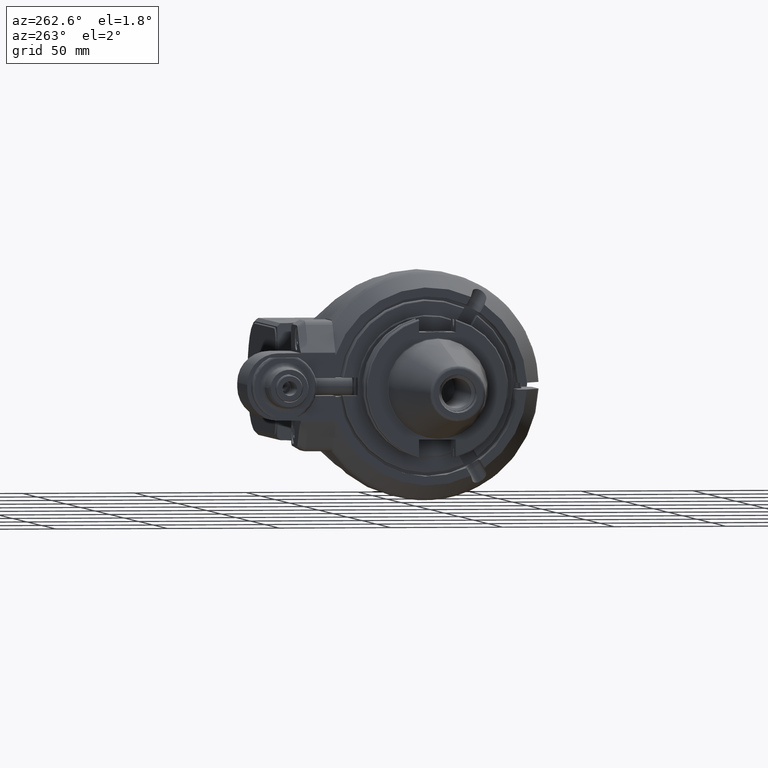
[diagram: clean part render]
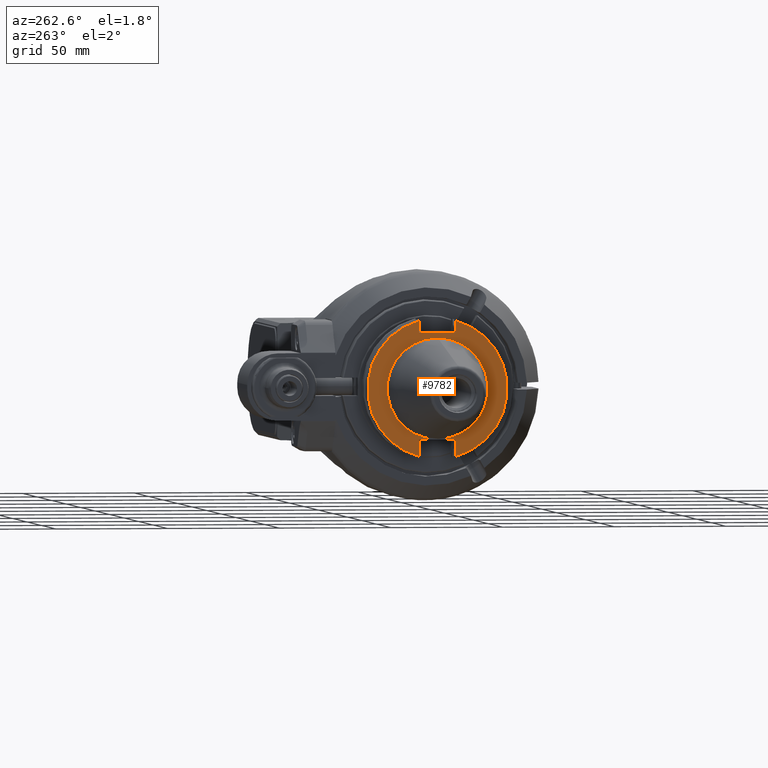
[diagram: same view with one face highlighted and labeled with its STEP entity id]
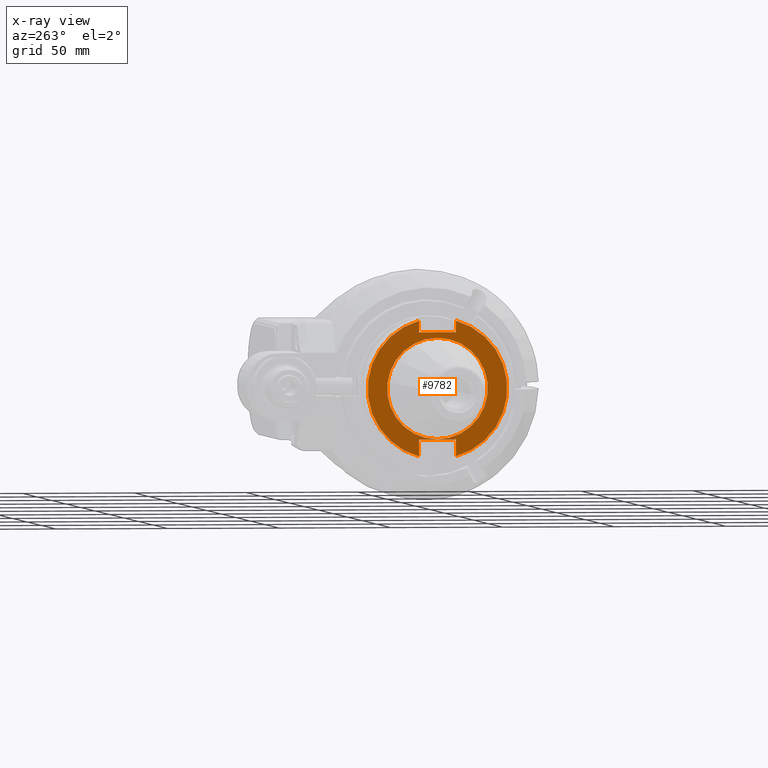
[diagram: x-ray of the same camera — body ghosted, the highlighted face saturated]
A machine part, auxiliary view. The second image highlights one B-rep face of the part: STEP entity #9782.
The next image is the same camera in x-ray: the body ghosted, the highlighted face saturated — about 0% of this face is hidden behind the body in this view.
In plain terms, the highlighted planar face has unit normal (-1, -0, 0).
Its self-contained STEP definition (entity closure, byte-faithful):
#289=FACE_BOUND('',#2403,.T.);
#914=CIRCLE('',#11024,31.25);
#915=CIRCLE('',#11026,31.25);
#916=CIRCLE('',#11027,22.525);
#1181=PLANE('',#11025);
#1728=FACE_OUTER_BOUND('',#2402,.T.);
#2402=EDGE_LOOP('',(#8611,#8612,#8613,#8614,#8615,#8616,#8617,#8618));
#2403=EDGE_LOOP('',(#8619));
#3153=LINE('',#46948,#3792);
#3158=LINE('',#46980,#3797);
#3165=LINE('',#47044,#3804);
#3168=LINE('',#47079,#3807);
#3169=LINE('',#47083,#3808);
#3170=LINE('',#47084,#3809);
#3792=VECTOR('',#13685,16.383);
#3797=VECTOR('',#13692,7.551284820588);
#3804=VECTOR('',#13711,5.138284820588);
#3807=VECTOR('',#13732,7.551284820588);
#3808=VECTOR('',#13735,5.138284820588);
#3809=VECTOR('',#13736,16.383);
#4659=VERTEX_POINT('',#46945);
#4660=VERTEX_POINT('',#46947);
#4666=VERTEX_POINT('',#46979);
#4676=VERTEX_POINT('',#47032);
#4677=VERTEX_POINT('',#47043);
#4680=VERTEX_POINT('',#47078);
#4681=VERTEX_POINT('',#47080);
#4682=VERTEX_POINT('',#47082);
#4683=VERTEX_POINT('',#47085);
#5971=EDGE_CURVE('',#4659,#4660,#3153,.T.);
#5978=EDGE_CURVE('',#4660,#4666,#3158,.T.);
#5992=EDGE_CURVE('',#4676,#4677,#3165,.T.);
#6000=EDGE_CURVE('',#4676,#4666,#914,.T.);
#6001=EDGE_CURVE('',#4680,#4659,#3168,.T.);
#6002=EDGE_CURVE('',#4680,#4681,#915,.T.);
#6003=EDGE_CURVE('',#4682,#4681,#3169,.T.);
#6004=EDGE_CURVE('',#4677,#4682,#3170,.T.);
#6005=EDGE_CURVE('',#4683,#4683,#916,.T.);
#8611=ORIENTED_EDGE('',*,*,#6000,.T.);
#8612=ORIENTED_EDGE('',*,*,#5978,.F.);
#8613=ORIENTED_EDGE('',*,*,#5971,.F.);
#8614=ORIENTED_EDGE('',*,*,#6001,.F.);
#8615=ORIENTED_EDGE('',*,*,#6002,.T.);
#8616=ORIENTED_EDGE('',*,*,#6003,.F.);
#8617=ORIENTED_EDGE('',*,*,#6004,.F.);
#8618=ORIENTED_EDGE('',*,*,#5992,.F.);
#8619=ORIENTED_EDGE('',*,*,#6005,.T.);
#9782=ADVANCED_FACE('',(#1728,#289),#1181,.T.);
#11024=AXIS2_PLACEMENT_3D('',#47076,#13728,#13729);
#11025=AXIS2_PLACEMENT_3D('',#47077,#13730,#13731);
#11026=AXIS2_PLACEMENT_3D('',#47081,#13733,#13734);
#11027=AXIS2_PLACEMENT_3D('',#47086,#13737,#13738);
#13685=DIRECTION('',(0.,0.,1.));
#13692=DIRECTION('',(0.,-1.,-2.940487747458E-14));
#13711=DIRECTION('',(0.,-1.,3.94109487431E-14));
#13728=DIRECTION('center_axis',(1.,0.,0.));
#13729=DIRECTION('ref_axis',(0.,0.965033114258782,0.262127999999995));
#13730=DIRECTION('center_axis',(1.,0.,0.));
#13731=DIRECTION('ref_axis',(0.,-1.,0.));
#13732=DIRECTION('',(0.,1.,-2.7758204336E-14));
#13733=DIRECTION('center_axis',(1.,0.,0.));
#13734=DIRECTION('ref_axis',(0.,-0.965033114258782,-0.262127999999995));
#13735=DIRECTION('',(0.,1.,4.217662935665E-14));
#13736=DIRECTION('',(0.,0.,-1.));
#13737=DIRECTION('center_axis',(-1.,0.,0.));
#13738=DIRECTION('ref_axis',(0.,1.,0.));
#46945=CARTESIAN_POINT('',(38.825,-22.606,-8.1915));
#46947=CARTESIAN_POINT('',(38.825,-22.606,8.1915));
#46948=CARTESIAN_POINT('',(38.825,-22.606,-8.1915));
#46979=CARTESIAN_POINT('',(38.825,-30.15728482059,8.1915));
#46980=CARTESIAN_POINT('',(38.825,-22.606,8.1915));
#47032=CARTESIAN_POINT('',(38.825,30.15728482059,8.1915));
#47043=CARTESIAN_POINT('',(38.825,25.019,8.1915));
#47044=CARTESIAN_POINT('',(38.825,30.15728482059,8.1915));
#47076=CARTESIAN_POINT('Origin',(38.825,0.,0.));
#47077=CARTESIAN_POINT('Origin',(38.825,-22.468145,0.));
#47078=CARTESIAN_POINT('',(38.825,-30.15728482059,-8.1915));
#47079=CARTESIAN_POINT('',(38.825,-30.15728482059,-8.1915));
#47080=CARTESIAN_POINT('',(38.825,30.15728482059,-8.1915));
#47081=CARTESIAN_POINT('Origin',(38.825,0.,0.));
#47082=CARTESIAN_POINT('',(38.825,25.019,-8.1915));
#47083=CARTESIAN_POINT('',(38.825,25.019,-8.1915));
#47084=CARTESIAN_POINT('',(38.825,25.019,8.1915));
#47085=CARTESIAN_POINT('',(38.825,-22.525,2.75851691507941E-15));
#47086=CARTESIAN_POINT('Origin',(38.825,0.,0.));